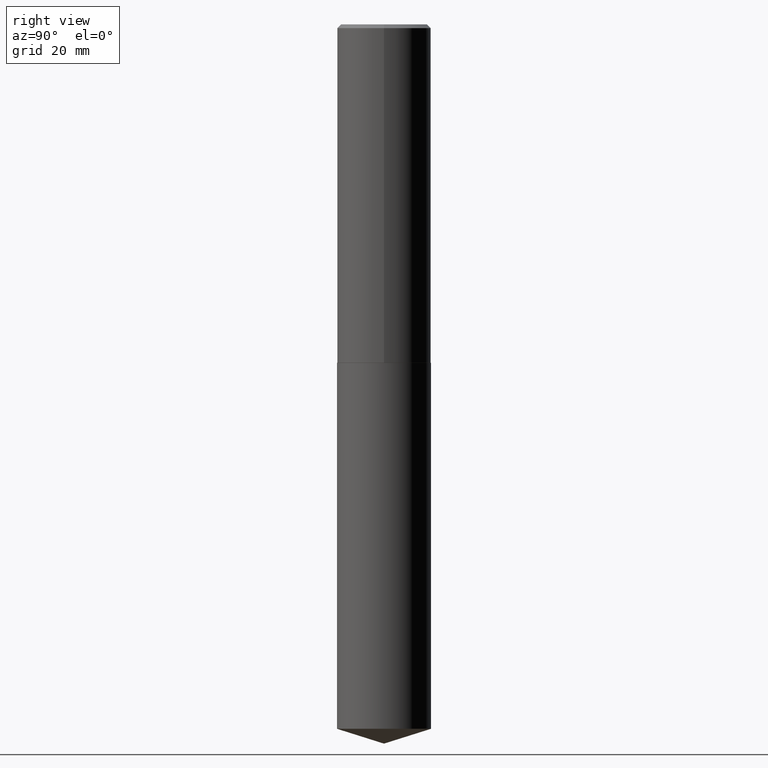
[diagram: clean part render]
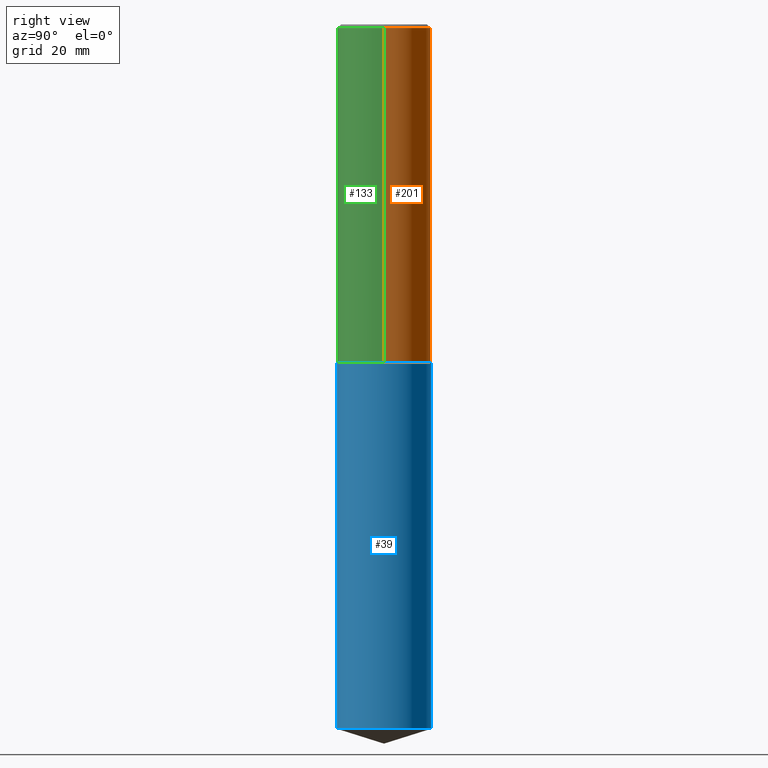
[diagram: same view with three faces highlighted in distinct colors, each labeled with its STEP entity id]
A machine part, right view with three faces highlighted in distinct colors.
Their STEP definitions:

[orange] entity #201 — the highlighted cylindrical surface (partial cylindrical patch) has radius 10 mm, axis along (-0, 0, 1).
#11 = VERTEX_POINT ( 'NONE', #20 ) ;
#15 = CARTESIAN_POINT ( 'NONE',  ( 0.3937000000000004385, -1.264439966862044181E-14, -2.834099999999998953 ) ) ;
#20 = CARTESIAN_POINT ( 'NONE',  ( 0.3937000000000000499, -2.858301198043932317E-15, -0.03125000000000014572 ) ) ;
#27 = CARTESIAN_POINT ( 'NONE',  ( 6.930703143609293595E-29, -9.895207262415355437E-15, -2.834099999999998953 ) ) ;
#31 = FACE_OUTER_BOUND ( 'NONE', #303, .T. ) ;
#37 = LINE ( 'NONE', #274, #371 ) ;
#38 = ORIENTED_EDGE ( 'NONE', *, *, #118, .T. ) ;
#42 = DIRECTION ( 'NONE',  ( -2.445468806185136597E-29, 3.491481338843145583E-15, 1.000000000000000000 ) ) ;
#53 = CARTESIAN_POINT ( 'NONE',  ( 0.000000000000000000, 0.000000000000000000, 0.000000000000000000 ) ) ;
#55 = CARTESIAN_POINT ( 'NONE',  ( -0.3937000000000000499, -2.204751276439585905E-15, -0.03125000000000014572 ) ) ;
#58 = DIRECTION ( 'NONE',  ( 1.000000000000000000, -6.982962677686266711E-15, 4.876176775795935793E-29 ) ) ;
#63 = EDGE_CURVE ( 'NONE', #65, #187, #316, .T. ) ;
#65 = VERTEX_POINT ( 'NONE', #135 ) ;
#85 = DIRECTION ( 'NONE',  ( -2.445468806185136597E-29, 3.491481338843145583E-15, 1.000000000000000000 ) ) ;
#105 = AXIS2_PLACEMENT_3D ( 'NONE', #154, #42, #245 ) ;
#118 = EDGE_CURVE ( 'NONE', #314, #65, #170, .T. ) ;
#135 = CARTESIAN_POINT ( 'NONE',  ( -0.3937000000000004385, -7.097800511727838284E-15, -2.834099999999998953 ) ) ;
#139 = VECTOR ( 'NONE', #228, 39.37007874015748143 ) ;
#154 = CARTESIAN_POINT ( 'NONE',  ( 7.642090019328588649E-31, -1.091087918388488171E-16, -0.03125000000000014572 ) ) ;
#158 = CIRCLE ( 'NONE', #105, 0.3937000000000000499 ) ;
#170 = CIRCLE ( 'NONE', #178, 0.3937000000000004385 ) ;
#178 = AXIS2_PLACEMENT_3D ( 'NONE', #27, #252, #346 ) ;
#187 = VERTEX_POINT ( 'NONE', #55 ) ;
#201 = ADVANCED_FACE ( 'NONE', ( #31 ), #327, .T. ) ;
#221 = AXIS2_PLACEMENT_3D ( 'NONE', #53, #85, #58 ) ;
#228 = DIRECTION ( 'NONE',  ( -2.445468806185136877E-29, 3.491481338843145188E-15, 1.000000000000000000 ) ) ;
#236 = ORIENTED_EDGE ( 'NONE', *, *, #63, .T. ) ;
#245 = DIRECTION ( 'NONE',  ( 1.000000000000000000, -6.982962677686265922E-15, 0.000000000000000000 ) ) ;
#252 = DIRECTION ( 'NONE',  ( -2.445468806185136597E-29, 3.491481338843145583E-15, 1.000000000000000000 ) ) ;
#274 = CARTESIAN_POINT ( 'NONE',  ( 0.3937000000000002164, -2.749192406205084794E-15, 1.919750796630861012E-29 ) ) ;
#284 = ORIENTED_EDGE ( 'NONE', *, *, #352, .F. ) ;
#287 = CARTESIAN_POINT ( 'NONE',  ( -0.3937000000000002164, 2.797406750687515970E-15, -1.936584745033357576E-29 ) ) ;
#303 = EDGE_LOOP ( 'NONE', ( #38, #236, #376, #284 ) ) ;
#311 = EDGE_CURVE ( 'NONE', #11, #187, #158, .T. ) ;
#314 = VERTEX_POINT ( 'NONE', #15 ) ;
#316 = LINE ( 'NONE', #287, #139 ) ;
#327 = CYLINDRICAL_SURFACE ( 'NONE', #221, 0.3937000000000002164 ) ;
#334 = DIRECTION ( 'NONE',  ( -2.445468806185136877E-29, 3.491481338843145188E-15, 1.000000000000000000 ) ) ;
#346 = DIRECTION ( 'NONE',  ( 1.000000000000000000, -6.982962677686265922E-15, 0.000000000000000000 ) ) ;
#352 = EDGE_CURVE ( 'NONE', #314, #11, #37, .T. ) ;
#371 = VECTOR ( 'NONE', #334, 39.37007874015748143 ) ;
#376 = ORIENTED_EDGE ( 'NONE', *, *, #311, .F. ) ;

[blue] entity #39 — the highlighted cylindrical surface (partial cylindrical patch) has radius 10 mm, axis along (-0, 0, 1).
#5 = EDGE_CURVE ( 'NONE', #338, #160, #268, .T. ) ;
#10 = ORIENTED_EDGE ( 'NONE', *, *, #163, .T. ) ;
#35 = CIRCLE ( 'NONE', #370, 0.3937000000000000499 ) ;
#39 = ADVANCED_FACE ( 'NONE', ( #79 ), #231, .T. ) ;
#46 = CARTESIAN_POINT ( 'NONE',  ( 6.931925878012386396E-29, -9.896953003084777729E-15, -2.834599999999999120 ) ) ;
#47 = DIRECTION ( 'NONE',  ( -6.982962677686265133E-15, -1.000000000000000000, 4.163344669033674845E-15 ) ) ;
#62 = LINE ( 'NONE', #116, #336 ) ;
#79 = FACE_OUTER_BOUND ( 'NONE', #102, .T. ) ;
#88 = DIRECTION ( 'NONE',  ( -2.444960396146817135E-29, 3.492209410954921361E-15, 1.000000000000000000 ) ) ;
#90 = LINE ( 'NONE', #264, #351 ) ;
#98 = CARTESIAN_POINT ( 'NONE',  ( -2.749192406205013402E-15, -0.3937000000000099309, -2.834599999999997788 ) ) ;
#102 = EDGE_LOOP ( 'NONE', ( #10, #128, #382, #307 ) ) ;
#116 = CARTESIAN_POINT ( 'NONE',  ( -2.749192406205013402E-15, -0.3937000000000099309, -2.834599999999997788 ) ) ;
#128 = ORIENTED_EDGE ( 'NONE', *, *, #210, .T. ) ;
#131 = AXIS2_PLACEMENT_3D ( 'NONE', #257, #253, #167 ) ;
#160 = VERTEX_POINT ( 'NONE', #355 ) ;
#163 = EDGE_CURVE ( 'NONE', #258, #305, #35, .T. ) ;
#165 = DIRECTION ( 'NONE',  ( -2.444960396146817416E-29, 3.492209410954920967E-15, 1.000000000000000000 ) ) ;
#167 = DIRECTION ( 'NONE',  ( -6.982962677686265133E-15, -1.000000000000000000, 4.163344669033674845E-15 ) ) ;
#172 = DIRECTION ( 'NONE',  ( -6.982962677686265133E-15, -1.000000000000000000, 2.775563112689116301E-15 ) ) ;
#180 = CARTESIAN_POINT ( 'NONE',  ( -2.749192406204939249E-15, -0.3937000000000207001, -5.899466866818344535 ) ) ;
#208 = DIRECTION ( 'NONE',  ( -2.444960396146817135E-29, 3.492209410954921361E-15, 1.000000000000000000 ) ) ;
#210 = EDGE_CURVE ( 'NONE', #305, #160, #90, .T. ) ;
#231 = CYLINDRICAL_SURFACE ( 'NONE', #131, 0.3937000000000000499 ) ;
#239 = EDGE_CURVE ( 'NONE', #258, #338, #62, .T. ) ;
#253 = DIRECTION ( 'NONE',  ( -2.444960396146817416E-29, 3.492209410954920967E-15, 1.000000000000000000 ) ) ;
#257 = CARTESIAN_POINT ( 'NONE',  ( 6.931925878012386396E-29, -9.896953003084777729E-15, -2.834599999999999120 ) ) ;
#258 = VERTEX_POINT ( 'NONE', #180 ) ;
#261 = CARTESIAN_POINT ( 'NONE',  ( 1.442540398684582544E-28, -2.060010991871172801E-14, -5.899466866818345423 ) ) ;
#264 = CARTESIAN_POINT ( 'NONE',  ( 2.797406750687583417E-15, 0.3936999999999901134, -2.834600000000000897 ) ) ;
#268 = CIRCLE ( 'NONE', #285, 0.3937000000000000499 ) ;
#285 = AXIS2_PLACEMENT_3D ( 'NONE', #46, #165, #47 ) ;
#305 = VERTEX_POINT ( 'NONE', #341 ) ;
#307 = ORIENTED_EDGE ( 'NONE', *, *, #239, .F. ) ;
#336 = VECTOR ( 'NONE', #88, 39.37007874015748143 ) ;
#338 = VERTEX_POINT ( 'NONE', #98 ) ;
#341 = CARTESIAN_POINT ( 'NONE',  ( 2.797406750687658754E-15, 0.3936999999999794553, -5.899466866818346311 ) ) ;
#351 = VECTOR ( 'NONE', #208, 39.37007874015748143 ) ;
#355 = CARTESIAN_POINT ( 'NONE',  ( 2.797406750687658754E-15, 0.3936999999999901134, -2.834600000000000897 ) ) ;
#370 = AXIS2_PLACEMENT_3D ( 'NONE', #261, #389, #172 ) ;
#382 = ORIENTED_EDGE ( 'NONE', *, *, #5, .F. ) ;
#389 = DIRECTION ( 'NONE',  ( -2.444960396146817416E-29, 3.492209410954920967E-15, 1.000000000000000000 ) ) ;

[green] entity #133 — the highlighted cylindrical surface (partial cylindrical patch) has radius 10 mm, axis along (-0, 0, 1).
#8 = CIRCLE ( 'NONE', #292, 0.3937000000000004385 ) ;
#11 = VERTEX_POINT ( 'NONE', #20 ) ;
#15 = CARTESIAN_POINT ( 'NONE',  ( 0.3937000000000004385, -1.264439966862044181E-14, -2.834099999999998953 ) ) ;
#20 = CARTESIAN_POINT ( 'NONE',  ( 0.3937000000000000499, -2.858301198043932317E-15, -0.03125000000000014572 ) ) ;
#30 = DIRECTION ( 'NONE',  ( -2.445468806185136597E-29, 3.491481338843145583E-15, 1.000000000000000000 ) ) ;
#37 = LINE ( 'NONE', #274, #371 ) ;
#55 = CARTESIAN_POINT ( 'NONE',  ( -0.3937000000000000499, -2.204751276439585905E-15, -0.03125000000000014572 ) ) ;
#57 = EDGE_CURVE ( 'NONE', #187, #11, #291, .T. ) ;
#63 = EDGE_CURVE ( 'NONE', #65, #187, #316, .T. ) ;
#65 = VERTEX_POINT ( 'NONE', #135 ) ;
#66 = ORIENTED_EDGE ( 'NONE', *, *, #352, .T. ) ;
#80 = DIRECTION ( 'NONE',  ( -2.445468806185136597E-29, 3.491481338843145583E-15, 1.000000000000000000 ) ) ;
#100 = DIRECTION ( 'NONE',  ( -2.445468806185136597E-29, 3.491481338843145583E-15, 1.000000000000000000 ) ) ;
#133 = ADVANCED_FACE ( 'NONE', ( #148 ), #266, .T. ) ;
#135 = CARTESIAN_POINT ( 'NONE',  ( -0.3937000000000004385, -7.097800511727838284E-15, -2.834099999999998953 ) ) ;
#139 = VECTOR ( 'NONE', #228, 39.37007874015748143 ) ;
#146 = AXIS2_PLACEMENT_3D ( 'NONE', #177, #30, #241 ) ;
#148 = FACE_OUTER_BOUND ( 'NONE', #271, .T. ) ;
#177 = CARTESIAN_POINT ( 'NONE',  ( 0.000000000000000000, 0.000000000000000000, 0.000000000000000000 ) ) ;
#187 = VERTEX_POINT ( 'NONE', #55 ) ;
#188 = CARTESIAN_POINT ( 'NONE',  ( 6.930703143609293595E-29, -9.895207262415355437E-15, -2.834099999999998953 ) ) ;
#199 = DIRECTION ( 'NONE',  ( 1.000000000000000000, -6.982962677686265922E-15, 0.000000000000000000 ) ) ;
#228 = DIRECTION ( 'NONE',  ( -2.445468806185136877E-29, 3.491481338843145188E-15, 1.000000000000000000 ) ) ;
#241 = DIRECTION ( 'NONE',  ( 1.000000000000000000, -6.982962677686266711E-15, 4.876176775795935793E-29 ) ) ;
#248 = ORIENTED_EDGE ( 'NONE', *, *, #57, .F. ) ;
#250 = ORIENTED_EDGE ( 'NONE', *, *, #63, .F. ) ;
#266 = CYLINDRICAL_SURFACE ( 'NONE', #146, 0.3937000000000002164 ) ;
#271 = EDGE_LOOP ( 'NONE', ( #250, #378, #66, #248 ) ) ;
#274 = CARTESIAN_POINT ( 'NONE',  ( 0.3937000000000002164, -2.749192406205084794E-15, 1.919750796630861012E-29 ) ) ;
#287 = CARTESIAN_POINT ( 'NONE',  ( -0.3937000000000002164, 2.797406750687515970E-15, -1.936584745033357576E-29 ) ) ;
#291 = CIRCLE ( 'NONE', #324, 0.3937000000000000499 ) ;
#292 = AXIS2_PLACEMENT_3D ( 'NONE', #188, #100, #364 ) ;
#314 = VERTEX_POINT ( 'NONE', #15 ) ;
#316 = LINE ( 'NONE', #287, #139 ) ;
#324 = AXIS2_PLACEMENT_3D ( 'NONE', #349, #80, #199 ) ;
#333 = EDGE_CURVE ( 'NONE', #65, #314, #8, .T. ) ;
#334 = DIRECTION ( 'NONE',  ( -2.445468806185136877E-29, 3.491481338843145188E-15, 1.000000000000000000 ) ) ;
#349 = CARTESIAN_POINT ( 'NONE',  ( 7.642090019328588649E-31, -1.091087918388488171E-16, -0.03125000000000014572 ) ) ;
#352 = EDGE_CURVE ( 'NONE', #314, #11, #37, .T. ) ;
#364 = DIRECTION ( 'NONE',  ( 1.000000000000000000, -6.982962677686265922E-15, 0.000000000000000000 ) ) ;
#371 = VECTOR ( 'NONE', #334, 39.37007874015748143 ) ;
#378 = ORIENTED_EDGE ( 'NONE', *, *, #333, .T. ) ;